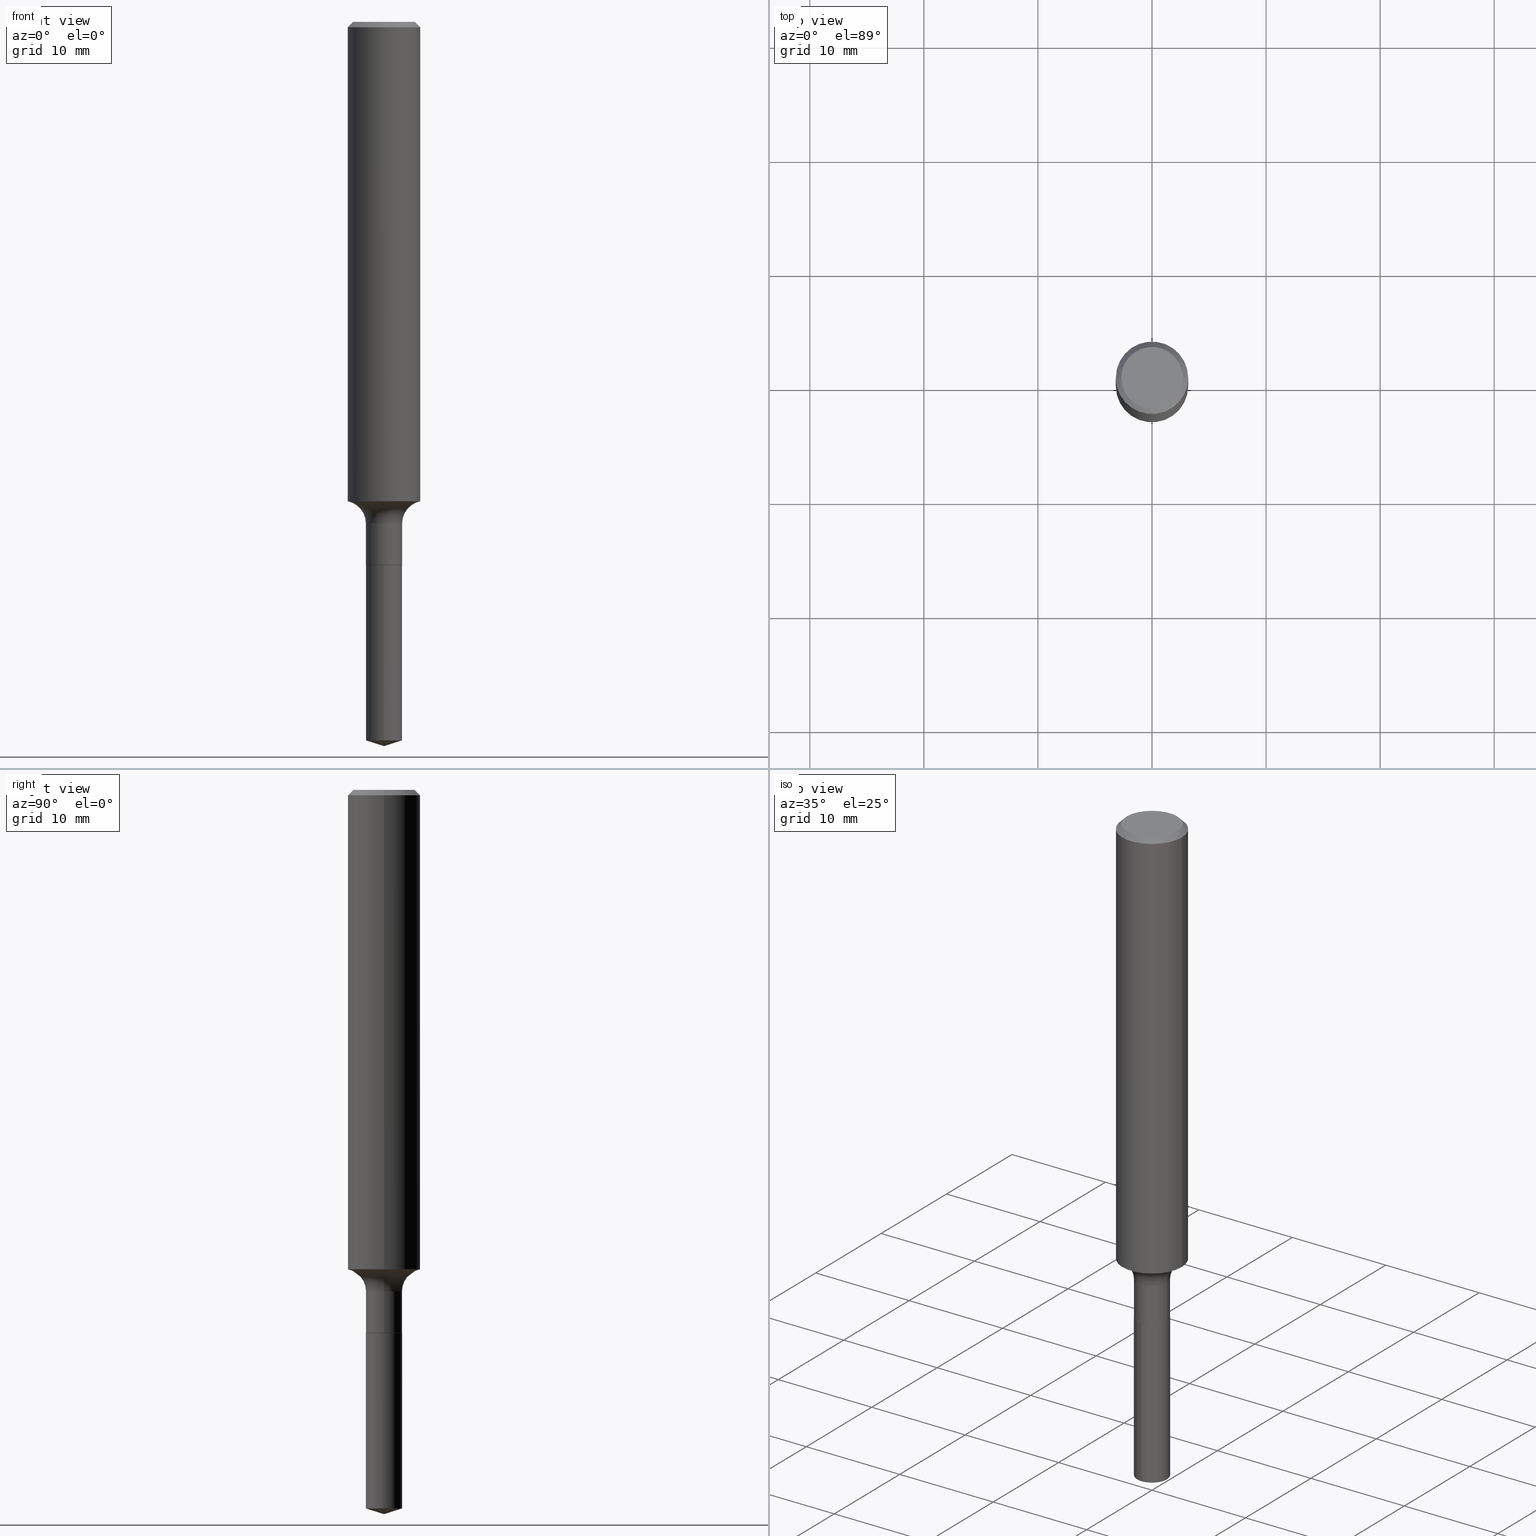
[diagram: canonical four-view strip — front | top / right | iso, engineering-drawing reading convention]
A machine part, canonical four-view strip (front | top / right | iso — engineering-drawing reading convention). The complete STEP part file that produces these views, byte-faithful:
ISO-10303-21;
HEADER;
FILE_DESCRIPTION (( 'STEP AP203' ),
    '1' );
FILE_NAME ('51330.STEP',
    '2024-04-19T12:47:59',
    ( '' ),
    ( '' ),
    'SwSTEP 2.0',
    'SolidWorks 2023',
    '' );
FILE_SCHEMA (( 'CONFIG_CONTROL_DESIGN' ));
ENDSEC;

DATA;
#1 = COORDINATED_UNIVERSAL_TIME_OFFSET ( 5, 0, .BEHIND. ) ;
#2 = ORIENTED_EDGE ( 'NONE', *, *, #417, .T. ) ;
#3 = DIRECTION ( 'NONE',  ( -2.446094705567647520E-29, 3.490585015303409213E-15, 1.000000000000000000 ) ) ;
#4 = VERTEX_POINT ( 'NONE', #14 ) ;
#5 = UNCERTAINTY_MEASURE_WITH_UNIT (LENGTH_MEASURE( 1.000000000000000082E-05 ), #477, 'distance_accuracy_value', 'NONE');
#6 = AXIS2_PLACEMENT_3D ( 'NONE', #194, #340, #35 ) ;
#7 = APPROVAL ( #40, 'UNSPECIFIED' ) ;
#8 = APPROVAL_PERSON_ORGANIZATION ( #25, #485, #267 ) ;
#9 = VECTOR ( 'NONE', #310, 39.37007874015748143 ) ;
#10 = EDGE_LOOP ( 'NONE', ( #416, #26, #400, #376 ) ) ;
#11 = ORIENTED_EDGE ( 'NONE', *, *, #332, .T. ) ;
#12 = DIRECTION ( 'NONE',  ( -2.445468806185136597E-29, 3.491481338843145583E-15, 1.000000000000000000 ) ) ;
#13 = FACE_OUTER_BOUND ( 'NONE', #339, .T. ) ;
#14 = CARTESIAN_POINT ( 'NONE',  ( 0.06199999999999999956, -6.979471196347447369E-15, -1.875000000000000000 ) ) ;
#15 = ORIENTED_EDGE ( 'NONE', *, *, #251, .T. ) ;
#16 = APPROVAL_DATE_TIME ( #59, #7 ) ;
#17 = ADVANCED_FACE ( 'NONE', ( #209 ), #38, .F. ) ;
#18 = CARTESIAN_POINT ( 'NONE',  ( 4.046653142340180452E-29, -5.777548213052970297E-15, -1.654755575742896889 ) ) ;
#19 = PLANE ( 'NONE',  #303 ) ;
#20 = DIRECTION ( 'NONE',  ( -2.446094705567647520E-29, 3.490585015303409213E-15, 1.000000000000000000 ) ) ;
#21 = AXIS2_PLACEMENT_3D ( 'NONE', #212, #57, #249 ) ;
#22 = CARTESIAN_POINT ( 'NONE',  ( 4.046653142340180452E-29, -5.777548213052970297E-15, -1.654755575742896889 ) ) ;
#23 = PERSON_AND_ORGANIZATION ( #458, #167 ) ;
#24 = CARTESIAN_POINT ( 'NONE',  ( 4.585254011597131119E-29, -6.546527510330898707E-15, -1.875000000000000000 ) ) ;
#25 = PERSON_AND_ORGANIZATION ( #458, #167 ) ;
#26 = ORIENTED_EDGE ( 'NONE', *, *, #443, .T. ) ;
#27 = DIRECTION ( 'NONE',  ( 1.000000000000000000, -6.982962677686270655E-15, 0.000000000000000000 ) ) ;
#28 = ADVANCED_FACE ( 'NONE', ( #391 ), #123, .T. ) ;
#29 = EDGE_CURVE ( 'NONE', #283, #347, #338, .T. ) ;
#30 = AXIS2_PLACEMENT_3D ( 'NONE', #18, #165, #461 ) ;
#31 = COORDINATED_UNIVERSAL_TIME_OFFSET ( 5, 0, .BEHIND. ) ;
#32 = ADVANCED_BREP_SHAPE_REPRESENTATION ( '51330', ( #384, #219, #289 ), #372 ) ;
#33 = PRODUCT_DEFINITION ( 'UNKNOWN', '', #455, #388 ) ;
#34 = EDGE_CURVE ( 'NONE', #247, #181, #48, .T. ) ;
#35 = DIRECTION ( 'NONE',  ( -6.982962677686265922E-15, -1.000000000000000000, 0.000000000000000000 ) ) ;
#36 = EDGE_LOOP ( 'NONE', ( #156, #445 ) ) ;
#37 = AXIS2_PLACEMENT_3D ( 'NONE', #106, #361, #114 ) ;
#38 = TOROIDAL_SURFACE ( 'NONE', #354, 0.1404999999999999305, 0.07799999999999993050 ) ;
#39 = EDGE_LOOP ( 'NONE', ( #15, #151, #189, #41 ) ) ;
#40 = APPROVAL_STATUS ( 'not_yet_approved' ) ;
#41 = ORIENTED_EDGE ( 'NONE', *, *, #414, .F. ) ;
#42 = CARTESIAN_POINT ( 'NONE',  ( -0.1250000000000001110, 8.881784197001260212E-16, -6.148668862818637832E-30 ) ) ;
#43 = PERSON_AND_ORGANIZATION_ROLE ( 'creator' ) ;
#44 = EDGE_LOOP ( 'NONE', ( #298, #342, #250, #277 ) ) ;
#45 = CIRCLE ( 'NONE', #69, 0.06199999999999999956 ) ;
#46 = ADVANCED_FACE ( 'NONE', ( #75 ), #447, .T. ) ;
#47 = LOCAL_TIME ( 8, 47, 59.00000000000000000, #486 ) ;
#48 = CIRCLE ( 'NONE', #198, 0.06250000000000000000 ) ;
#49 = VERTEX_POINT ( 'NONE', #113 ) ;
#50 = DIRECTION ( 'NONE',  ( 1.000000000000000000, -6.982962677686266711E-15, 4.876176775795935232E-29 ) ) ;
#51 = CARTESIAN_POINT ( 'NONE',  ( 6.065860033942612795E-29, -8.659357068157762178E-15, -2.480293825695063958 ) ) ;
#52 = APPROVAL_STATUS ( 'not_yet_approved' ) ;
#53 = DIRECTION ( 'NONE',  ( 1.000000000000000000, -6.982962677686270655E-15, 0.000000000000000000 ) ) ;
#54 = ADVANCED_FACE ( 'NONE', ( #266 ), #406, .T. ) ;
#55 = ORIENTED_EDGE ( 'NONE', *, *, #297, .F. ) ;
#56 = CONICAL_SURFACE ( 'NONE', #104, 0.1250000000000000000, 0.7853981633974447263 ) ;
#57 = DIRECTION ( 'NONE',  ( -2.445468806185136597E-29, 3.491481338843145583E-15, 1.000000000000000000 ) ) ;
#58 = ORIENTED_EDGE ( 'NONE', *, *, #275, .T. ) ;
#59 = DATE_AND_TIME ( #136, #231 ) ;
#60 = DIRECTION ( 'NONE',  ( -2.445468806185136597E-29, 3.491481338843145583E-15, 1.000000000000000000 ) ) ;
#61 = CARTESIAN_POINT ( 'NONE',  ( 0.000000000000000000, 0.000000000000000000, 0.000000000000000000 ) ) ;
#62 = CARTESIAN_POINT ( 'NONE',  ( 0.1404999999999999305, -7.025558750020173486E-15, -1.731200000000000072 ) ) ;
#63 = DIRECTION ( 'NONE',  ( -2.445468806185136597E-29, 3.491481338843145583E-15, 1.000000000000000000 ) ) ;
#64 = CARTESIAN_POINT ( 'NONE',  ( 0.1250000000000000000, -9.383356098140928781E-16, -0.01875000000000013461 ) ) ;
#65 = ORIENTED_EDGE ( 'NONE', *, *, #299, .T. ) ;
#66 = CC_DESIGN_DATE_AND_TIME_ASSIGNMENT ( #378, #307, ( #224 ) ) ;
#67 = CARTESIAN_POINT ( 'NONE',  ( 0.000000000000000000, 0.000000000000000000, 0.000000000000000000 ) ) ;
#68 = CARTESIAN_POINT ( 'NONE',  ( 0.000000000000000000, 0.000000000000000000, 0.000000000000000000 ) ) ;
#69 = AXIS2_PLACEMENT_3D ( 'NONE', #352, #12, #174 ) ;
#70 = LINE ( 'NONE', #217, #162 ) ;
#71 = DATE_AND_TIME ( #260, #47 ) ;
#72 = CLOSED_SHELL ( 'NONE', ( #54, #306, #252, #74, #46, #421, #17, #433, #471, #230, #115, #370 ) ) ;
#73 = DIRECTION ( 'NONE',  ( -6.982962677686265922E-15, -1.000000000000000000, 4.370956789862821150E-15 ) ) ;
#74 = ADVANCED_FACE ( 'NONE', ( #371 ), #412, .F. ) ;
#75 = FACE_OUTER_BOUND ( 'NONE', #316, .T. ) ;
#76 = DATE_AND_TIME ( #440, #197 ) ;
#77 = ADVANCED_FACE ( 'NONE', ( #143 ), #110, .T. ) ;
#78 = DIRECTION ( 'NONE',  ( 1.000000000000000000, -6.982962677686266711E-15, 0.000000000000000000 ) ) ;
#79 = AXIS2_PLACEMENT_3D ( 'NONE', #240, #20, #427 ) ;
#80 = AXIS2_PLACEMENT_3D ( 'NONE', #225, #437, #369 ) ;
#81 = LINE ( 'NONE', #487, #188 ) ;
#82 = FACE_OUTER_BOUND ( 'NONE', #163, .T. ) ;
#83 = ORIENTED_EDGE ( 'NONE', *, *, #268, .T. ) ;
#84 = DIMENSIONAL_EXPONENTS ( 1.000000000000000000, 0.000000000000000000, 0.000000000000000000, 0.000000000000000000, 0.000000000000000000, 0.000000000000000000, 0.000000000000000000 ) ;
#85 = EDGE_CURVE ( 'NONE', #205, #247, #184, .T. ) ;
#86 = CYLINDRICAL_SURFACE ( 'NONE', #213, 0.06249999999999997918 ) ;
#87 = ORIENTED_EDGE ( 'NONE', *, *, #480, .T. ) ;
#88 = ORIENTED_EDGE ( 'NONE', *, *, #443, .F. ) ;
#89 = CC_DESIGN_DATE_AND_TIME_ASSIGNMENT ( #71, #368, ( #33 ) ) ;
#90 = ORIENTED_EDGE ( 'NONE', *, *, #417, .F. ) ;
#91 = APPROVAL_DATE_TIME ( #76, #485 ) ;
#92 = ORIENTED_EDGE ( 'NONE', *, *, #468, .T. ) ;
#93 = VECTOR ( 'NONE', #117, 39.37007874015748143 ) ;
#94 = FACE_OUTER_BOUND ( 'NONE', #233, .T. ) ;
#95 = EDGE_CURVE ( 'NONE', #49, #484, #295, .T. ) ;
#96 = DIRECTION ( 'NONE',  ( 1.000000000000000000, 0.000000000000000000, 0.000000000000000000 ) ) ;
#97 = CARTESIAN_POINT ( 'NONE',  ( 4.585254011597131119E-29, -6.546527510330898707E-15, -1.875000000000000000 ) ) ;
#98 = DIRECTION ( 'NONE',  ( 1.000000000000000000, -6.982962677686266711E-15, 4.875930095424100059E-29 ) ) ;
#99 = ORIENTED_EDGE ( 'NONE', *, *, #29, .F. ) ;
#100 = DIRECTION ( 'NONE',  ( 1.000000000000000000, -6.982962677686264344E-15, 0.000000000000000000 ) ) ;
#101 = PRODUCT ( '51330', '51330', '', ( #139 ) ) ;
#102 = AXIS2_PLACEMENT_3D ( 'NONE', #97, #393, #53 ) ;
#103 = APPLICATION_CONTEXT ( 'configuration controlled 3d designs of mechanical parts and assemblies' ) ;
#104 = AXIS2_PLACEMENT_3D ( 'NONE', #171, #322, #469 ) ;
#105 = CIRCLE ( 'NONE', #21, 0.06249999999999997224 ) ;
#106 = CARTESIAN_POINT ( 'NONE',  ( 4.584031277194039439E-29, -6.544781769661477203E-15, -1.874500000000000277 ) ) ;
#107 = DIRECTION ( 'NONE',  ( 2.445468806185136597E-29, -3.491481338843145583E-15, -1.000000000000000000 ) ) ;
#108 = DIRECTION ( 'NONE',  ( 1.000000000000000000, -6.982962677686265922E-15, 4.876176775795935793E-29 ) ) ;
#109 = CARTESIAN_POINT ( 'NONE',  ( -1.591006383764329968E-46, 2.271535455632767580E-32, 6.505936120470314915E-18 ) ) ;
#110 = CYLINDRICAL_SURFACE ( 'NONE', #232, 0.06250000000000000000 ) ;
#111 = DIRECTION ( 'NONE',  ( 1.000000000000000000, -6.982962677686267499E-15, 4.876176775795936353E-29 ) ) ;
#112 = AXIS2_PLACEMENT_3D ( 'NONE', #246, #138, #98 ) ;
#113 = CARTESIAN_POINT ( 'NONE',  ( -4.364351673553457676E-16, -0.06250000000000655032, -1.874999999999999778 ) ) ;
#114 = DIRECTION ( 'NONE',  ( 1.000000000000000000, -6.982962677686262766E-15, 0.000000000000000000 ) ) ;
#115 = ADVANCED_FACE ( 'NONE', ( #146 ), #374, .F. ) ;
#116 = CARTESIAN_POINT ( 'NONE',  ( 4.585254011597131119E-29, -6.546527510330898707E-15, -1.875000000000000000 ) ) ;
#117 = DIRECTION ( 'NONE',  ( -2.445468806185136877E-29, 3.491481338843145188E-15, 1.000000000000000000 ) ) ;
#118 = AXIS2_PLACEMENT_3D ( 'NONE', #397, #60, #357 ) ;
#119 = CC_DESIGN_APPROVAL ( #7, ( #224 ) ) ;
#120 = AXIS2_PLACEMENT_3D ( 'NONE', #436, #107, #179 ) ;
#121 = VERTEX_POINT ( 'NONE', #64 ) ;
#122 = VERTEX_POINT ( 'NONE', #364 ) ;
#123 = CONICAL_SURFACE ( 'NONE', #79, 124.8659371009147918, 1.265363707695891016 ) ;
#124 = EDGE_CURVE ( 'NONE', #164, #309, #254, .T. ) ;
#125 = EDGE_LOOP ( 'NONE', ( #387, #460, #465, #276 ) ) ;
#126 = ORIENTED_EDGE ( 'NONE', *, *, #85, .F. ) ;
#127 = EDGE_CURVE ( 'NONE', #220, #394, #70, .T. ) ;
#128 = ORIENTED_EDGE ( 'NONE', *, *, #95, .F. ) ;
#129 = AXIS2_PLACEMENT_3D ( 'NONE', #62, #257, #100 ) ;
#130 = AXIS2_PLACEMENT_3D ( 'NONE', #444, #186, #111 ) ;
#131 = CARTESIAN_POINT ( 'NONE',  ( 0.1062499999999999972, -8.259777185439879685E-16, 6.505936120475796882E-18 ) ) ;
#132 = CARTESIAN_POINT ( 'NONE',  ( 4.233595597267708565E-29, -6.044452493805253770E-15, -1.731200000000000072 ) ) ;
#133 = VERTEX_POINT ( 'NONE', #281 ) ;
#134 = ADVANCED_FACE ( 'NONE', ( #94 ), #413, .T. ) ;
#135 =( NAMED_UNIT ( * ) PLANE_ANGLE_UNIT ( ) SI_UNIT ( $, .RADIAN. ) );
#136 = CALENDAR_DATE ( 2024, 19, 4 ) ;
#137 = DIRECTION ( 'NONE',  ( -2.445468806185136877E-29, 3.491481338843145188E-15, 1.000000000000000000 ) ) ;
#138 = DIRECTION ( 'NONE',  ( -2.445468806185136597E-29, 3.491481338843145583E-15, 1.000000000000000000 ) ) ;
#139 = MECHANICAL_CONTEXT ( 'NONE', #256, 'mechanical' ) ;
#140 = CYLINDRICAL_SURFACE ( 'NONE', #312, 0.1250000000000001110 ) ;
#141 = VECTOR ( 'NONE', #255, 39.37007874015748143 ) ;
#142 = DIRECTION ( 'NONE',  ( -2.446094705567647520E-29, 3.490585015303409213E-15, 1.000000000000000000 ) ) ;
#143 = FACE_OUTER_BOUND ( 'NONE', #159, .T. ) ;
#144 = DATE_AND_TIME ( #248, #203 ) ;
#145 = PERSON_AND_ORGANIZATION_ROLE ( 'design_owner' ) ;
#146 = FACE_OUTER_BOUND ( 'NONE', #315, .T. ) ;
#147 = ORIENTED_EDGE ( 'NONE', *, *, #268, .F. ) ;
#148 = EDGE_CURVE ( 'NONE', #121, #122, #325, .T. ) ;
#149 = DIRECTION ( 'NONE',  ( 1.000000000000000000, -6.982962677686265922E-15, 0.000000000000000000 ) ) ;
#150 = PERSON_AND_ORGANIZATION ( #458, #167 ) ;
#151 = ORIENTED_EDGE ( 'NONE', *, *, #302, .T. ) ;
#152 = PERSON_AND_ORGANIZATION_ROLE ( 'design_supplier' ) ;
#153 = CC_DESIGN_PERSON_AND_ORGANIZATION_ASSIGNMENT ( #375, #341, ( #224 ) ) ;
#154 = PERSON_AND_ORGANIZATION ( #458, #167 ) ;
#155 = PRODUCT_RELATED_PRODUCT_CATEGORY ( 'detail', '', ( #101 ) ) ;
#156 = ORIENTED_EDGE ( 'NONE', *, *, #29, .T. ) ;
#157 = CARTESIAN_POINT ( 'NONE',  ( 6.115236763919119500E-29, -8.726462538258523822E-15, -2.500000000000000000 ) ) ;
#158 = CALENDAR_DATE ( 2024, 19, 4 ) ;
#159 = EDGE_LOOP ( 'NONE', ( #229, #274, #128, #193 ) ) ;
#160 = CARTESIAN_POINT ( 'NONE',  ( 0.06250000000000000000, -6.981216937016868873E-15, -1.874500000000000277 ) ) ;
#161 = LINE ( 'NONE', #337, #9 ) ;
#162 = VECTOR ( 'NONE', #367, 39.37007874015748143 ) ;
#163 = EDGE_LOOP ( 'NONE', ( #382, #451 ) ) ;
#164 = VERTEX_POINT ( 'NONE', #253 ) ;
#165 = DIRECTION ( 'NONE',  ( -2.445468806185136597E-29, 3.491481338843145583E-15, 1.000000000000000000 ) ) ;
#166 = ORIENTED_EDGE ( 'NONE', *, *, #389, .T. ) ;
#167 = ORGANIZATION ( 'UNSPECIFIED', 'UNSPECIFIED', '' ) ;
#168 = EDGE_LOOP ( 'NONE', ( #278, #87, #380, #462 ) ) ;
#169 = DIRECTION ( 'NONE',  ( 1.000000000000000000, -6.982962677686266711E-15, 4.876176775795935232E-29 ) ) ;
#170 = DIRECTION ( 'NONE',  ( -2.445468806185136597E-29, 3.491481338843145583E-15, 1.000000000000000000 ) ) ;
#171 = CARTESIAN_POINT ( 'NONE',  ( 4.585254011597163874E-31, -6.546527510330944066E-17, -0.01875000000000013461 ) ) ;
#172 = APPROVAL ( #52, 'UNSPECIFIED' ) ;
#173 = LINE ( 'NONE', #472, #448 ) ;
#174 = DIRECTION ( 'NONE',  ( 1.000000000000000000, -6.982962677686270655E-15, 0.000000000000000000 ) ) ;
#175 = CIRCLE ( 'NONE', #37, 0.06250000000000000000 ) ;
#176 = CARTESIAN_POINT ( 'NONE',  ( 4.440892098501083701E-16, 0.06249999999999344968, -1.875000000000000444 ) ) ;
#177 = CIRCLE ( 'NONE', #435, 0.06250000000000000000 ) ;
#178 = DIRECTION ( 'NONE',  ( -6.982962677686265922E-15, -1.000000000000000000, 0.000000000000000000 ) ) ;
#179 = DIRECTION ( 'NONE',  ( -1.000000000000000000, 6.982962677686266711E-15, 0.000000000000000000 ) ) ;
#180 = EDGE_CURVE ( 'NONE', #309, #164, #279, .T. ) ;
#181 = VERTEX_POINT ( 'NONE', #273 ) ;
#182 = DIRECTION ( 'NONE',  ( -2.446094705567647800E-29, 3.490585015303409213E-15, 1.000000000000000000 ) ) ;
#183 = CARTESIAN_POINT ( 'NONE',  ( 4.585254011597163874E-31, -6.546527510330944066E-17, -0.01875000000000013461 ) ) ;
#184 = LINE ( 'NONE', #410, #442 ) ;
#185 = AXIS2_PLACEMENT_3D ( 'NONE', #446, #221, #210 ) ;
#186 = DIRECTION ( 'NONE',  ( -2.445468806185136597E-29, 3.491481338843145583E-15, 1.000000000000000000 ) ) ;
#187 = DIRECTION ( 'NONE',  ( -6.982962677686265922E-15, -1.000000000000000000, 4.370956789862821150E-15 ) ) ;
#188 = VECTOR ( 'NONE', #235, 39.37007874015748143 ) ;
#189 = ORIENTED_EDGE ( 'NONE', *, *, #332, .F. ) ;
#190 = EDGE_LOOP ( 'NONE', ( #463, #166, #199, #392 ) ) ;
#191 = PLANE ( 'NONE',  #301 ) ;
#192 = APPROVAL_ROLE ( '' ) ;
#193 = ORIENTED_EDGE ( 'NONE', *, *, #491, .F. ) ;
#194 = CARTESIAN_POINT ( 'NONE',  ( 6.065860033942612795E-29, -8.659357068157762178E-15, -2.480293825695063958 ) ) ;
#195 = CIRCLE ( 'NONE', #129, 0.07799999999999993050 ) ;
#196 = EDGE_LOOP ( 'NONE', ( #285, #99, #241, #356 ) ) ;
#197 = LOCAL_TIME ( 8, 47, 59.00000000000000000, #31 ) ;
#198 = AXIS2_PLACEMENT_3D ( 'NONE', #51, #202, #178 ) ;
#199 = ORIENTED_EDGE ( 'NONE', *, *, #491, .T. ) ;
#200 = DIRECTION ( 'NONE',  ( -0.7071067811865450192, 2.468850131082230634E-15, -0.7071067811865500152 ) ) ;
#201 = CARTESIAN_POINT ( 'NONE',  ( 0.1250000000000001110, -8.728703347107841277E-16, 6.095220969744924646E-30 ) ) ;
#202 = DIRECTION ( 'NONE',  ( -2.446094705567647520E-29, 3.490585015303409213E-15, 1.000000000000000000 ) ) ;
#203 = LOCAL_TIME ( 8, 47, 59.00000000000000000, #428 ) ;
#204 = LINE ( 'NONE', #201, #336 ) ;
#205 = VERTEX_POINT ( 'NONE', #157 ) ;
#206 = DIRECTION ( 'NONE',  ( -6.982962677686267499E-15, -1.000000000000000000, 3.500519750498711926E-15 ) ) ;
#207 = DIRECTION ( 'NONE',  ( 0.000000000000000000, 0.000000000000000000, 1.000000000000000000 ) ) ;
#208 = CARTESIAN_POINT ( 'NONE',  ( 6.115257345414506266E-29, -8.726462538258523822E-15, -2.500000000000000000 ) ) ;
#209 = FACE_OUTER_BOUND ( 'NONE', #125, .T. ) ;
#210 = DIRECTION ( 'NONE',  ( -1.000000000000000000, 7.105427357601005014E-15, 0.000000000000000000 ) ) ;
#211 = PERSON_AND_ORGANIZATION ( #458, #167 ) ;
#212 = CARTESIAN_POINT ( 'NONE',  ( 4.233595597267708565E-29, -6.044452493805253770E-15, -1.731200000000000072 ) ) ;
#213 = AXIS2_PLACEMENT_3D ( 'NONE', #355, #170, #321 ) ;
#214 = ADVANCED_FACE ( 'NONE', ( #82 ), #191, .F. ) ;
#215 = CARTESIAN_POINT ( 'NONE',  ( -0.06199999999999999956, -6.103341786985525788E-15, -1.875000000000000000 ) ) ;
#216 = CARTESIAN_POINT ( 'NONE',  ( 4.584031277194039439E-29, -6.544781769661477203E-15, -1.874500000000000277 ) ) ;
#217 = CARTESIAN_POINT ( 'NONE',  ( 0.06249999999999997918, -4.364351673553915708E-16, 3.047610484872459170E-30 ) ) ;
#218 = DIRECTION ( 'NONE',  ( 1.000000000000000000, -6.982962677686268288E-15, 4.883557194083113462E-29 ) ) ;
#219 = MANIFOLD_SOLID_BREP ( 'Body-Move/Copy2[2]', #72 ) ;
#220 = VERTEX_POINT ( 'NONE', #160 ) ;
#221 = DIRECTION ( 'NONE',  ( 7.105427357601001859E-15, 1.000000000000000000, -3.491481338843145583E-15 ) ) ;
#222 = CONICAL_SURFACE ( 'NONE', #120, 0.1250000000000000000, 0.7853981633974447263 ) ;
#223 = CARTESIAN_POINT ( 'NONE',  ( 4.440892098501233585E-16, 0.06249999999999345662, -1.875000000000000444 ) ) ;
#224 = SECURITY_CLASSIFICATION ( '', '', #453 ) ;
#225 = CARTESIAN_POINT ( 'NONE',  ( 4.585254011597131119E-29, -6.546527510330898707E-15, -1.875000000000000000 ) ) ;
#226 = CIRCLE ( 'NONE', #6, 0.06250000000000000000 ) ;
#227 = CC_DESIGN_PERSON_AND_ORGANIZATION_ASSIGNMENT ( #154, #152, ( #455 ) ) ;
#228 = CARTESIAN_POINT ( 'NONE',  ( 4.585254011597131119E-29, -6.546527510330898707E-15, -1.875000000000000000 ) ) ;
#229 = ORIENTED_EDGE ( 'NONE', *, *, #34, .T. ) ;
#230 = ADVANCED_FACE ( 'NONE', ( #452 ), #19, .F. ) ;
#231 = LOCAL_TIME ( 8, 47, 59.00000000000000000, #346 ) ;
#232 = AXIS2_PLACEMENT_3D ( 'NONE', #116, #478, #73 ) ;
#233 = EDGE_LOOP ( 'NONE', ( #234, #236, #454 ) ) ;
#234 = ORIENTED_EDGE ( 'NONE', *, *, #299, .F. ) ;
#235 = DIRECTION ( 'NONE',  ( -2.445468806185136877E-29, 3.491481338843145188E-15, 1.000000000000000000 ) ) ;
#236 = ORIENTED_EDGE ( 'NONE', *, *, #85, .T. ) ;
#237 = PERSON_AND_ORGANIZATION ( #458, #167 ) ;
#238 = ORIENTED_EDGE ( 'NONE', *, *, #180, .F. ) ;
#239 = CIRCLE ( 'NONE', #405, 0.1250000000000000000 ) ;
#240 = CARTESIAN_POINT ( 'NONE',  ( -9.018887796150370124E-28, 1.286964637568134966E-13, 36.87007874015748143 ) ) ;
#241 = ORIENTED_EDGE ( 'NONE', *, *, #439, .T. ) ;
#242 = CC_DESIGN_PERSON_AND_ORGANIZATION_ASSIGNMENT ( #150, #265, ( #33 ) ) ;
#243 = AXIS2_PLACEMENT_3D ( 'NONE', #335, #300, #108 ) ;
#244 = DIRECTION ( 'NONE',  ( -2.446094705567647520E-29, 3.490585015303409213E-15, 1.000000000000000000 ) ) ;
#245 = CYLINDRICAL_SURFACE ( 'NONE', #473, 0.1250000000000001110 ) ;
#246 = CARTESIAN_POINT ( 'NONE',  ( -1.591006383764329968E-46, 2.271535455632767580E-32, 6.505936120470314915E-18 ) ) ;
#247 = VERTEX_POINT ( 'NONE', #429 ) ;
#248 = CALENDAR_DATE ( 2024, 19, 4 ) ;
#249 = DIRECTION ( 'NONE',  ( 1.000000000000000000, -6.982962677686265922E-15, 0.000000000000000000 ) ) ;
#250 = ORIENTED_EDGE ( 'NONE', *, *, #148, .T. ) ;
#251 = EDGE_CURVE ( 'NONE', #4, #459, #349, .T. ) ;
#252 = ADVANCED_FACE ( 'NONE', ( #13 ), #140, .T. ) ;
#253 = CARTESIAN_POINT ( 'NONE',  ( 0.1250000000000001943, -6.650418547763754425E-15, -1.654755575742896889 ) ) ;
#254 = CIRCLE ( 'NONE', #426, 0.1250000000000001943 ) ;
#255 = DIRECTION ( 'NONE',  ( -2.446094705567647800E-29, 3.490585015303409213E-15, 1.000000000000000000 ) ) ;
#256 = APPLICATION_CONTEXT ( 'configuration controlled 3d designs of mechanical parts and assemblies' ) ;
#257 = DIRECTION ( 'NONE',  ( -6.982962677686266711E-15, -1.000000000000000000, 3.491481338843145583E-15 ) ) ;
#258 = DIRECTION ( 'NONE',  ( -2.445468806185136597E-29, 3.491481338843145583E-15, 1.000000000000000000 ) ) ;
#259 = DIRECTION ( 'NONE',  ( 1.000000000000000000, -6.982962677686267499E-15, 0.000000000000000000 ) ) ;
#260 = CALENDAR_DATE ( 2024, 19, 4 ) ;
#261 = CC_DESIGN_APPROVAL ( #485, ( #455 ) ) ;
#262 = AXIS2_PLACEMENT_3D ( 'NONE', #483, #264, #27 ) ;
#263 = DIRECTION ( 'NONE',  ( -6.659769872151631300E-15, -0.9537169507482265995, 0.3007057995042744514 ) ) ;
#264 = DIRECTION ( 'NONE',  ( -2.445468806185136597E-29, 3.491481338843145583E-15, 1.000000000000000000 ) ) ;
#265 = PERSON_AND_ORGANIZATION_ROLE ( 'creator' ) ;
#266 = FACE_OUTER_BOUND ( 'NONE', #39, .T. ) ;
#267 = APPROVAL_ROLE ( '' ) ;
#268 = EDGE_CURVE ( 'NONE', #164, #121, #204, .T. ) ;
#269 = ORIENTED_EDGE ( 'NONE', *, *, #34, .F. ) ;
#270 = AXIS2_PLACEMENT_3D ( 'NONE', #24, #327, #399 ) ;
#271 = FACE_OUTER_BOUND ( 'NONE', #168, .T. ) ;
#272 = CONICAL_SURFACE ( 'NONE', #102, 0.06199999999999999956, 0.7853981633975507526 ) ;
#273 = CARTESIAN_POINT ( 'NONE',  ( 4.440892098501230626E-16, 0.06249999999999132638, -2.480293825695063958 ) ) ;
#274 = ORIENTED_EDGE ( 'NONE', *, *, #296, .T. ) ;
#275 = EDGE_CURVE ( 'NONE', #133, #394, #105, .T. ) ;
#276 = ORIENTED_EDGE ( 'NONE', *, *, #492, .T. ) ;
#277 = ORIENTED_EDGE ( 'NONE', *, *, #439, .F. ) ;
#278 = ORIENTED_EDGE ( 'NONE', *, *, #379, .F. ) ;
#279 = CIRCLE ( 'NONE', #30, 0.1250000000000001943 ) ;
#280 = DIRECTION ( 'NONE',  ( -2.445468806185136597E-29, 3.491481338843145583E-15, 1.000000000000000000 ) ) ;
#281 = CARTESIAN_POINT ( 'NONE',  ( -0.06249999999999997224, -5.850527921883303265E-15, -1.731200000000000072 ) ) ;
#282 = FACE_OUTER_BOUND ( 'NONE', #10, .T. ) ;
#283 = VERTEX_POINT ( 'NONE', #353 ) ;
#284 = CARTESIAN_POINT ( 'NONE',  ( -7.955031918821649840E-47, 1.135767727816383790E-32, 3.252968060235157457E-18 ) ) ;
#285 = ORIENTED_EDGE ( 'NONE', *, *, #408, .F. ) ;
#286 = CARTESIAN_POINT ( 'NONE',  ( -9.018887796150370124E-28, 1.286964637568134966E-13, 36.87007874015748143 ) ) ;
#287 = DIRECTION ( 'NONE',  ( 2.438088387897960049E-29, -3.491481338843145188E-15, -1.000000000000000000 ) ) ;
#288 = AXIS2_PLACEMENT_3D ( 'NONE', #345, #3, #187 ) ;
#289 = AXIS2_PLACEMENT_3D ( 'NONE', #67, #207, #96 ) ;
#290 = CLOSED_SHELL ( 'NONE', ( #77, #28, #134, #407, #214 ) ) ;
#291 = DIRECTION ( 'NONE',  ( -0.7071067811866199593, 7.493145998870616062E-15, 0.7071067811864750752 ) ) ;
#292 = DIRECTION ( 'NONE',  ( -6.982962677686265922E-15, -1.000000000000000000, 4.370956789862821150E-15 ) ) ;
#293 = DIRECTION ( 'NONE',  ( -2.445468806185136597E-29, 3.491481338843145583E-15, 1.000000000000000000 ) ) ;
#294 = LINE ( 'NONE', #449, #441 ) ;
#295 = CIRCLE ( 'NONE', #80, 0.06250000000000000000 ) ;
#296 = EDGE_CURVE ( 'NONE', #181, #484, #432, .T. ) ;
#297 = EDGE_CURVE ( 'NONE', #164, #394, #195, .T. ) ;
#298 = ORIENTED_EDGE ( 'NONE', *, *, #319, .F. ) ;
#299 = EDGE_CURVE ( 'NONE', #205, #181, #323, .T. ) ;
#300 = DIRECTION ( 'NONE',  ( -2.438088387897960049E-29, 3.491481338843145188E-15, 1.000000000000000000 ) ) ;
#301 = AXIS2_PLACEMENT_3D ( 'NONE', #228, #343, #489 ) ;
#302 = EDGE_CURVE ( 'NONE', #459, #422, #173, .T. ) ;
#303 = AXIS2_PLACEMENT_3D ( 'NONE', #284, #287, #431 ) ;
#304 = CYLINDRICAL_SURFACE ( 'NONE', #288, 0.06250000000000000000 ) ;
#305 = EDGE_LOOP ( 'NONE', ( #126, #65, #269 ) ) ;
#306 = ADVANCED_FACE ( 'NONE', ( #476 ), #222, .T. ) ;
#307 = DATE_TIME_ROLE ( 'classification_date' ) ;
#308 = ORIENTED_EDGE ( 'NONE', *, *, #127, .F. ) ;
#309 = VERTEX_POINT ( 'NONE', #402 ) ;
#310 = DIRECTION ( 'NONE',  ( 0.7071067811865450192, -7.319954787623246579E-15, -0.7071067811865500152 ) ) ;
#311 = CIRCLE ( 'NONE', #482, 0.06249999999999997224 ) ;
#312 = AXIS2_PLACEMENT_3D ( 'NONE', #68, #63, #169 ) ;
#313 = EDGE_LOOP ( 'NONE', ( #238, #92, #58, #55 ) ) ;
#314 = ORIENTED_EDGE ( 'NONE', *, *, #492, .F. ) ;
#315 = EDGE_LOOP ( 'NONE', ( #424, #88 ) ) ;
#316 = EDGE_LOOP ( 'NONE', ( #11, #350, #314, #308 ) ) ;
#317 = PRODUCT_DEFINITION_SHAPE ( 'NONE', 'NONE',  #33 ) ;
#318 = EDGE_CURVE ( 'NONE', #484, #49, #373, .T. ) ;
#319 = EDGE_CURVE ( 'NONE', #347, #283, #386, .T. ) ;
#320 = AXIS2_PLACEMENT_3D ( 'NONE', #329, #403, #218 ) ;
#321 = DIRECTION ( 'NONE',  ( 1.000000000000000000, -6.982962677686267499E-15, 4.876176775795936353E-29 ) ) ;
#322 = DIRECTION ( 'NONE',  ( 2.445468806185136597E-29, -3.491481338843145583E-15, -1.000000000000000000 ) ) ;
#323 = LINE ( 'NONE', #208, #457 ) ;
#324 = CC_DESIGN_APPROVAL ( #172, ( #33 ) ) ;
#325 = CIRCLE ( 'NONE', #118, 0.1250000000000000000 ) ;
#326 = APPROVAL_ROLE ( '' ) ;
#327 = DIRECTION ( 'NONE',  ( -2.445468806185136597E-29, 3.491481338843145583E-15, 1.000000000000000000 ) ) ;
#328 = CC_DESIGN_PERSON_AND_ORGANIZATION_ASSIGNMENT ( #211, #145, ( #101 ) ) ;
#329 = CARTESIAN_POINT ( 'NONE',  ( 4.233595597267708565E-29, -6.044452493805253770E-15, -1.731200000000000072 ) ) ;
#330 = DIRECTION ( 'NONE',  ( -2.445468806185136597E-29, 3.491481338843145583E-15, 1.000000000000000000 ) ) ;
#331 = CARTESIAN_POINT ( 'NONE',  ( 4.233595597267708565E-29, -6.044452493805253770E-15, -1.731200000000000072 ) ) ;
#332 = EDGE_CURVE ( 'NONE', #220, #422, #177, .T. ) ;
#333 = LOCAL_TIME ( 8, 47, 59.00000000000000000, #1 ) ;
#334 = FACE_OUTER_BOUND ( 'NONE', #196, .T. ) ;
#335 = CARTESIAN_POINT ( 'NONE',  ( 4.585254011597131119E-29, -6.546527510330898707E-15, -1.875000000000000000 ) ) ;
#336 = VECTOR ( 'NONE', #137, 39.37007874015748143 ) ;
#337 = CARTESIAN_POINT ( 'NONE',  ( 0.1250000000000000000, -9.230275248247509846E-16, -0.01875000000000013461 ) ) ;
#338 = CIRCLE ( 'NONE', #112, 0.1062499999999999972 ) ;
#339 = EDGE_LOOP ( 'NONE', ( #415, #2, #377, #147 ) ) ;
#340 = DIRECTION ( 'NONE',  ( -2.446094705567647520E-29, 3.490585015303409213E-15, 1.000000000000000000 ) ) ;
#341 = PERSON_AND_ORGANIZATION_ROLE ( 'classification_officer' ) ;
#342 = ORIENTED_EDGE ( 'NONE', *, *, #408, .T. ) ;
#343 = DIRECTION ( 'NONE',  ( 2.446094705567647240E-29, -3.490585015303409213E-15, -1.000000000000000000 ) ) ;
#344 = EDGE_LOOP ( 'NONE', ( #90, #409, #83, #419 ) ) ;
#345 = CARTESIAN_POINT ( 'NONE',  ( 4.585254011597131119E-29, -6.546527510330898707E-15, -1.875000000000000000 ) ) ;
#346 = COORDINATED_UNIVERSAL_TIME_OFFSET ( 5, 0, .BEHIND. ) ;
#347 = VERTEX_POINT ( 'NONE', #131 ) ;
#348 = VECTOR ( 'NONE', #200, 39.37007874015748143 ) ;
#349 = CIRCLE ( 'NONE', #270, 0.06199999999999999956 ) ;
#350 = ORIENTED_EDGE ( 'NONE', *, *, #379, .T. ) ;
#351 = SHAPE_DEFINITION_REPRESENTATION ( #317, #32 ) ;
#352 = CARTESIAN_POINT ( 'NONE',  ( 4.585254011597131119E-29, -6.546527510330898707E-15, -1.875000000000000000 ) ) ;
#353 = CARTESIAN_POINT ( 'NONE',  ( -0.1062499999999999972, 7.746724220558198188E-16, 6.505936120465012444E-18 ) ) ;
#354 = AXIS2_PLACEMENT_3D ( 'NONE', #132, #280, #360 ) ;
#355 = CARTESIAN_POINT ( 'NONE',  ( 0.000000000000000000, 0.000000000000000000, 0.000000000000000000 ) ) ;
#356 = ORIENTED_EDGE ( 'NONE', *, *, #467, .T. ) ;
#357 = DIRECTION ( 'NONE',  ( 1.000000000000000000, -6.982962677686266711E-15, 0.000000000000000000 ) ) ;
#358 = DIRECTION ( 'NONE',  ( -2.445468806185136597E-29, 3.491481338843145583E-15, 1.000000000000000000 ) ) ;
#359 = DIRECTION ( 'NONE',  ( 6.776566513254256560E-15, 0.9537169507482285979, 0.3007057995042677900 ) ) ;
#360 = DIRECTION ( 'NONE',  ( 1.000000000000000000, -6.982962677686268288E-15, 4.883557194083113462E-29 ) ) ;
#361 = DIRECTION ( 'NONE',  ( -2.445468806185136597E-29, 3.491481338843145583E-15, 1.000000000000000000 ) ) ;
#362 = APPLICATION_PROTOCOL_DEFINITION ( 'international standard', 'config_control_design', 1994, #103 ) ;
#363 = CARTESIAN_POINT ( 'NONE',  ( 4.585254011597131119E-29, -6.546527510330898707E-15, -1.875000000000000000 ) ) ;
#364 = CARTESIAN_POINT ( 'NONE',  ( -0.1250000000000000000, -2.033328324378012517E-15, -0.01875000000000013461 ) ) ;
#365 = AXIS2_PLACEMENT_3D ( 'NONE', #109, #258, #404 ) ;
#366 = DIRECTION ( 'NONE',  ( -2.445468806185136597E-29, 3.491481338843145583E-15, 1.000000000000000000 ) ) ;
#367 = DIRECTION ( 'NONE',  ( -2.445468806185136877E-29, 3.491481338843145188E-15, 1.000000000000000000 ) ) ;
#368 = DATE_TIME_ROLE ( 'creation_date' ) ;
#369 = DIRECTION ( 'NONE',  ( -6.982962677686265922E-15, -1.000000000000000000, 4.370956789862821150E-15 ) ) ;
#370 = ADVANCED_FACE ( 'NONE', ( #282 ), #272, .T. ) ;
#371 = FACE_OUTER_BOUND ( 'NONE', #313, .T. ) ;
#372 =( GEOMETRIC_REPRESENTATION_CONTEXT ( 3 ) GLOBAL_UNCERTAINTY_ASSIGNED_CONTEXT ( ( #5 ) ) GLOBAL_UNIT_ASSIGNED_CONTEXT ( ( #477, #135, #430 ) ) REPRESENTATION_CONTEXT ( 'NONE', 'WORKASPACE' ) );
#373 = CIRCLE ( 'NONE', #411, 0.06250000000000000000 ) ;
#374 = PLANE ( 'NONE',  #243 ) ;
#375 = PERSON_AND_ORGANIZATION ( #458, #167 ) ;
#376 = ORIENTED_EDGE ( 'NONE', *, *, #480, .F. ) ;
#377 = ORIENTED_EDGE ( 'NONE', *, *, #148, .F. ) ;
#378 = DATE_AND_TIME ( #158, #333 ) ;
#379 = EDGE_CURVE ( 'NONE', #422, #133, #81, .T. ) ;
#380 = ORIENTED_EDGE ( 'NONE', *, *, #127, .T. ) ;
#381 = LINE ( 'NONE', #42, #93 ) ;
#382 = ORIENTED_EDGE ( 'NONE', *, *, #95, .T. ) ;
#383 = VECTOR ( 'NONE', #456, 39.37007874015748143 ) ;
#384 = MANIFOLD_SOLID_BREP ( 'Body-Move/Copy2[1]', #290 ) ;
#385 = CC_DESIGN_SECURITY_CLASSIFICATION ( #224, ( #455 ) ) ;
#386 = CIRCLE ( 'NONE', #365, 0.1062499999999999972 ) ;
#387 = ORIENTED_EDGE ( 'NONE', *, *, #468, .F. ) ;
#388 = DESIGN_CONTEXT ( 'detailed design', #103, 'design' ) ;
#389 = EDGE_CURVE ( 'NONE', #181, #247, #226, .T. ) ;
#390 = CARTESIAN_POINT ( 'NONE',  ( -0.1250000000000000000, 8.074050596074738982E-16, -0.01875000000000013461 ) ) ;
#391 = FACE_OUTER_BOUND ( 'NONE', #305, .T. ) ;
#392 = ORIENTED_EDGE ( 'NONE', *, *, #318, .F. ) ;
#393 = DIRECTION ( 'NONE',  ( -2.445468806185136597E-29, 3.491481338843145583E-15, 1.000000000000000000 ) ) ;
#394 = VERTEX_POINT ( 'NONE', #420 ) ;
#395 = APPROVAL_PERSON_ORGANIZATION ( #418, #7, #192 ) ;
#396 = CIRCLE ( 'NONE', #185, 0.07799999999999993050 ) ;
#397 = CARTESIAN_POINT ( 'NONE',  ( 4.585254011597163874E-31, -6.546527510330944066E-17, -0.01875000000000013461 ) ) ;
#398 = CARTESIAN_POINT ( 'NONE',  ( -0.06250000000000000000, -5.850527921883303265E-15, -1.874500000000000277 ) ) ;
#399 = DIRECTION ( 'NONE',  ( 1.000000000000000000, -6.982962677686270655E-15, 0.000000000000000000 ) ) ;
#400 = ORIENTED_EDGE ( 'NONE', *, *, #414, .T. ) ;
#401 = CC_DESIGN_PERSON_AND_ORGANIZATION_ASSIGNMENT ( #237, #43, ( #455 ) ) ;
#402 = CARTESIAN_POINT ( 'NONE',  ( -0.1250000000000001943, -4.889369793352843487E-15, -1.654755575742896889 ) ) ;
#403 = DIRECTION ( 'NONE',  ( -2.445468806185136597E-29, 3.491481338843145583E-15, 1.000000000000000000 ) ) ;
#404 = DIRECTION ( 'NONE',  ( 1.000000000000000000, -6.982962677686266711E-15, 4.875930095424100059E-29 ) ) ;
#405 = AXIS2_PLACEMENT_3D ( 'NONE', #183, #330, #78 ) ;
#406 = CONICAL_SURFACE ( 'NONE', #262, 0.06199999999999999956, 0.7853981633975507526 ) ;
#407 = ADVANCED_FACE ( 'NONE', ( #488 ), #304, .T. ) ;
#408 = EDGE_CURVE ( 'NONE', #347, #121, #161, .T. ) ;
#409 = ORIENTED_EDGE ( 'NONE', *, *, #180, .T. ) ;
#410 = CARTESIAN_POINT ( 'NONE',  ( 6.112889641234703609E-29, -8.729823751532535503E-15, -2.500000000000000000 ) ) ;
#411 = AXIS2_PLACEMENT_3D ( 'NONE', #363, #142, #292 ) ;
#412 = TOROIDAL_SURFACE ( 'NONE', #320, 0.1404999999999999305, 0.07799999999999993050 ) ;
#413 = CONICAL_SURFACE ( 'NONE', #474, 124.8659371009147918, 1.265363707695891016 ) ;
#414 = EDGE_CURVE ( 'NONE', #4, #220, #490, .T. ) ;
#415 = ORIENTED_EDGE ( 'NONE', *, *, #124, .T. ) ;
#416 = ORIENTED_EDGE ( 'NONE', *, *, #302, .F. ) ;
#417 = EDGE_CURVE ( 'NONE', #309, #122, #381, .T. ) ;
#418 = PERSON_AND_ORGANIZATION ( #458, #167 ) ;
#419 = ORIENTED_EDGE ( 'NONE', *, *, #467, .F. ) ;
#420 = CARTESIAN_POINT ( 'NONE',  ( 0.06249999999999997224, -6.480887661160645440E-15, -1.731200000000000072 ) ) ;
#421 = ADVANCED_FACE ( 'NONE', ( #271 ), #86, .T. ) ;
#422 = VERTEX_POINT ( 'NONE', #398 ) ;
#423 = LINE ( 'NONE', #390, #348 ) ;
#424 = ORIENTED_EDGE ( 'NONE', *, *, #251, .F. ) ;
#425 = FACE_OUTER_BOUND ( 'NONE', #344, .T. ) ;
#426 = AXIS2_PLACEMENT_3D ( 'NONE', #22, #293, #259 ) ;
#427 = DIRECTION ( 'NONE',  ( -6.982962677686267499E-15, -1.000000000000000000, 3.500519750498711926E-15 ) ) ;
#428 = COORDINATED_UNIVERSAL_TIME_OFFSET ( 5, 0, .BEHIND. ) ;
#429 = CARTESIAN_POINT ( 'NONE',  ( -4.364351673553308285E-16, -0.06250000000000863198, -2.480293825695063958 ) ) ;
#430 =( NAMED_UNIT ( * ) SI_UNIT ( $, .STERADIAN. ) SOLID_ANGLE_UNIT ( ) );
#431 = DIRECTION ( 'NONE',  ( -1.000000000000000000, 6.982962677686265922E-15, -4.876176775795935793E-29 ) ) ;
#432 = LINE ( 'NONE', #176, #141 ) ;
#433 = ADVANCED_FACE ( 'NONE', ( #425 ), #245, .T. ) ;
#434 = APPROVAL_PERSON_ORGANIZATION ( #23, #172, #326 ) ;
#435 = AXIS2_PLACEMENT_3D ( 'NONE', #216, #366, #464 ) ;
#436 = CARTESIAN_POINT ( 'NONE',  ( 4.585254011597163874E-31, -6.546527510330944066E-17, -0.01875000000000013461 ) ) ;
#437 = DIRECTION ( 'NONE',  ( -2.446094705567647520E-29, 3.490585015303409213E-15, 1.000000000000000000 ) ) ;
#438 = APPROVAL_DATE_TIME ( #144, #172 ) ;
#439 = EDGE_CURVE ( 'NONE', #283, #122, #423, .T. ) ;
#440 = CALENDAR_DATE ( 2024, 19, 4 ) ;
#441 = VECTOR ( 'NONE', #182, 39.37007874015748143 ) ;
#442 = VECTOR ( 'NONE', #263, 39.37007874015748143 ) ;
#443 = EDGE_CURVE ( 'NONE', #459, #4, #45, .T. ) ;
#444 = CARTESIAN_POINT ( 'NONE',  ( 0.000000000000000000, 0.000000000000000000, 0.000000000000000000 ) ) ;
#445 = ORIENTED_EDGE ( 'NONE', *, *, #319, .T. ) ;
#446 = CARTESIAN_POINT ( 'NONE',  ( -0.1404999999999999305, -5.046139950062314095E-15, -1.731200000000000072 ) ) ;
#447 = CYLINDRICAL_SURFACE ( 'NONE', #130, 0.06249999999999997918 ) ;
#448 = VECTOR ( 'NONE', #291, 39.37007874015748143 ) ;
#449 = CARTESIAN_POINT ( 'NONE',  ( -4.364351673553457676E-16, -0.06250000000000655032, -1.874999999999999778 ) ) ;
#450 = CARTESIAN_POINT ( 'NONE',  ( 0.06199999999999999956, -6.979471196347447369E-15, -1.875000000000000000 ) ) ;
#451 = ORIENTED_EDGE ( 'NONE', *, *, #318, .T. ) ;
#452 = FACE_OUTER_BOUND ( 'NONE', #36, .T. ) ;
#453 = SECURITY_CLASSIFICATION_LEVEL ( 'unclassified' ) ;
#454 = ORIENTED_EDGE ( 'NONE', *, *, #389, .F. ) ;
#455 = PRODUCT_DEFINITION_FORMATION_WITH_SPECIFIED_SOURCE ( 'ANY', '', #101, .NOT_KNOWN. ) ;
#456 = DIRECTION ( 'NONE',  ( 0.7071067811866199593, -2.468850131083015945E-15, 0.7071067811864750752 ) ) ;
#457 = VECTOR ( 'NONE', #359, 39.37007874015748143 ) ;
#458 = PERSON ( 'UNSPECIFIED', 'UNSPECIFIED', 'UNSPECIFIED', ('UNSPECIFIED'), ('UNSPECIFIED'), ('UNSPECIFIED') ) ;
#459 = VERTEX_POINT ( 'NONE', #215 ) ;
#460 = ORIENTED_EDGE ( 'NONE', *, *, #124, .F. ) ;
#461 = DIRECTION ( 'NONE',  ( 1.000000000000000000, -6.982962677686267499E-15, 0.000000000000000000 ) ) ;
#462 = ORIENTED_EDGE ( 'NONE', *, *, #275, .F. ) ;
#463 = ORIENTED_EDGE ( 'NONE', *, *, #296, .F. ) ;
#464 = DIRECTION ( 'NONE',  ( 1.000000000000000000, -6.982962677686262766E-15, 0.000000000000000000 ) ) ;
#465 = ORIENTED_EDGE ( 'NONE', *, *, #297, .T. ) ;
#466 =( LENGTH_UNIT ( ) NAMED_UNIT ( * ) SI_UNIT ( $, .METRE. ) );
#467 = EDGE_CURVE ( 'NONE', #122, #121, #239, .T. ) ;
#468 = EDGE_CURVE ( 'NONE', #309, #133, #396, .T. ) ;
#469 = DIRECTION ( 'NONE',  ( -1.000000000000000000, 6.982962677686266711E-15, 0.000000000000000000 ) ) ;
#470 = APPLICATION_PROTOCOL_DEFINITION ( 'international standard', 'config_control_design', 1994, #256 ) ;
#471 = ADVANCED_FACE ( 'NONE', ( #334 ), #56, .T. ) ;
#472 = CARTESIAN_POINT ( 'NONE',  ( -0.06199999999999999956, -6.105991014159636200E-15, -1.875000000000000000 ) ) ;
#473 = AXIS2_PLACEMENT_3D ( 'NONE', #61, #358, #50 ) ;
#474 = AXIS2_PLACEMENT_3D ( 'NONE', #286, #244, #206 ) ;
#475 = LENGTH_MEASURE_WITH_UNIT ( LENGTH_MEASURE( 0.02539999999999999897 ), #466 );
#476 = FACE_OUTER_BOUND ( 'NONE', #44, .T. ) ;
#477 =( CONVERSION_BASED_UNIT ( 'INCH', #475 ) LENGTH_UNIT ( ) NAMED_UNIT ( #84 ) );
#478 = DIRECTION ( 'NONE',  ( -2.446094705567647520E-29, 3.490585015303409213E-15, 1.000000000000000000 ) ) ;
#479 = APPROVAL_STATUS ( 'not_yet_approved' ) ;
#480 = EDGE_CURVE ( 'NONE', #422, #220, #175, .T. ) ;
#481 = DIRECTION ( 'NONE',  ( -2.445468806185136597E-29, 3.491481338843145583E-15, 1.000000000000000000 ) ) ;
#482 = AXIS2_PLACEMENT_3D ( 'NONE', #331, #481, #149 ) ;
#483 = CARTESIAN_POINT ( 'NONE',  ( 4.585254011597131119E-29, -6.546527510330898707E-15, -1.875000000000000000 ) ) ;
#484 = VERTEX_POINT ( 'NONE', #223 ) ;
#485 = APPROVAL ( #479, 'UNSPECIFIED' ) ;
#486 = COORDINATED_UNIVERSAL_TIME_OFFSET ( 5, 0, .BEHIND. ) ;
#487 = CARTESIAN_POINT ( 'NONE',  ( -0.06249999999999997918, 4.440892098500624683E-16, -3.074334431409315413E-30 ) ) ;
#488 = FACE_OUTER_BOUND ( 'NONE', #190, .T. ) ;
#489 = DIRECTION ( 'NONE',  ( 6.982962677686265922E-15, 1.000000000000000000, -3.490585015303409213E-15 ) ) ;
#490 = LINE ( 'NONE', #450, #383 ) ;
#491 = EDGE_CURVE ( 'NONE', #247, #49, #294, .T. ) ;
#492 = EDGE_CURVE ( 'NONE', #394, #133, #311, .T. ) ;
ENDSEC;
END-ISO-10303-21;
